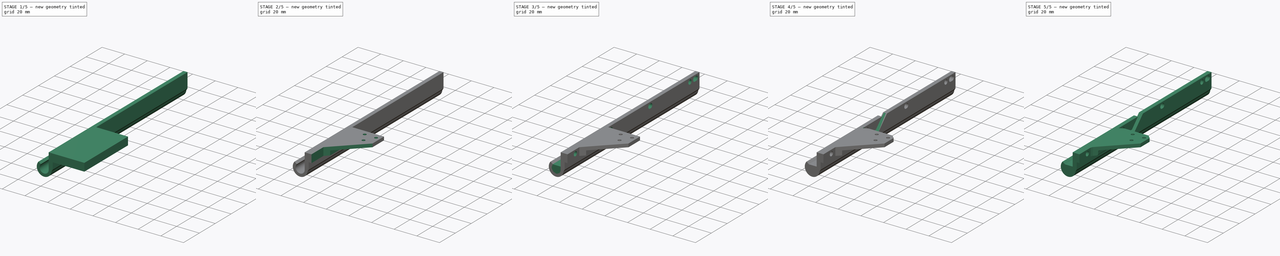
[diagram: build sequence overview — one tinted view per stage of 5, left to right]
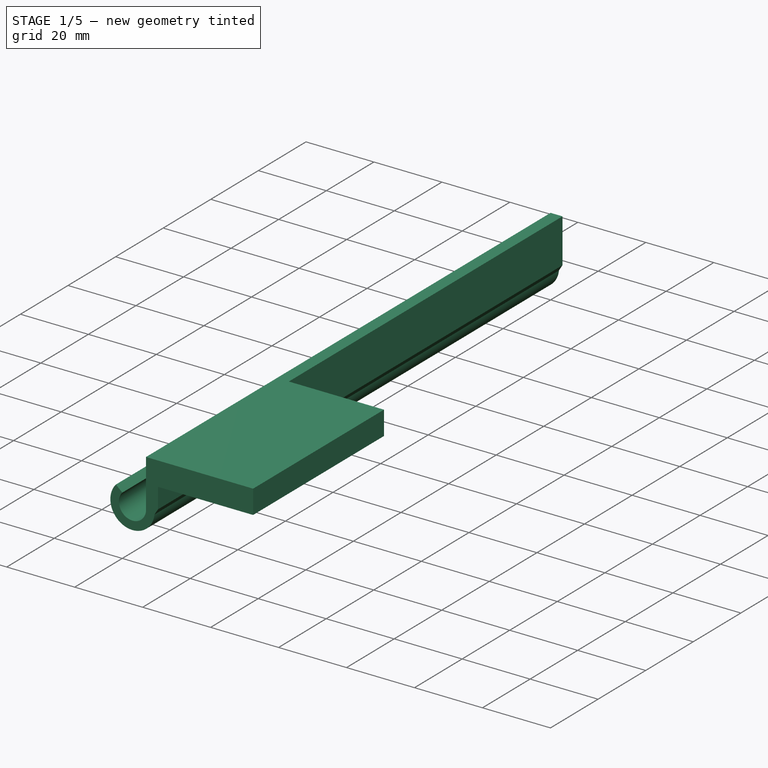
[diagram: stage 1 of 5 — iso view after this stage's code; geometry added in this stage tinted green]
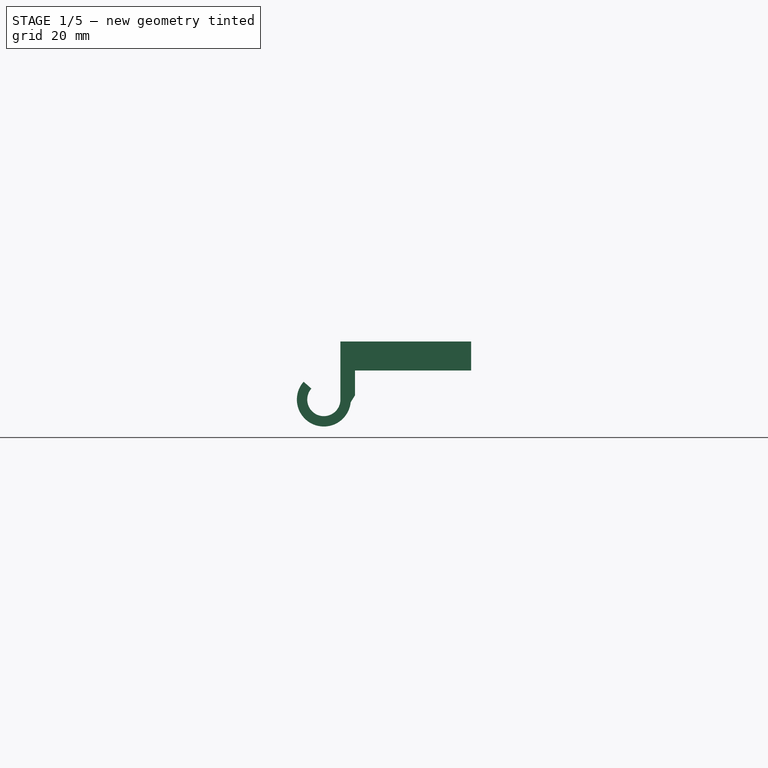
[diagram: stage 1 of 5 — front view after this stage's code; geometry added in this stage tinted green]
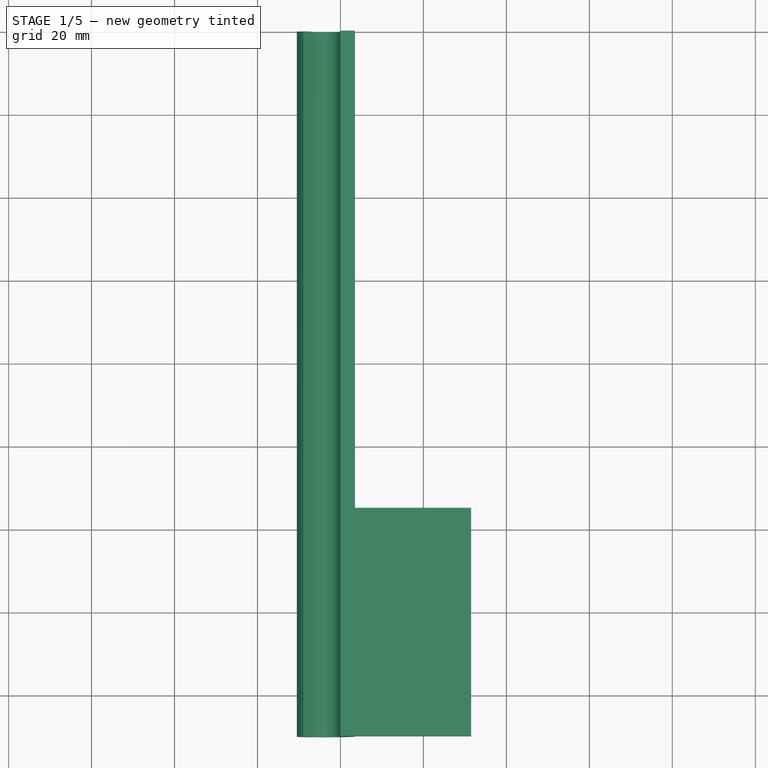
[diagram: stage 1 of 5 — top view after this stage's code; geometry added in this stage tinted green]
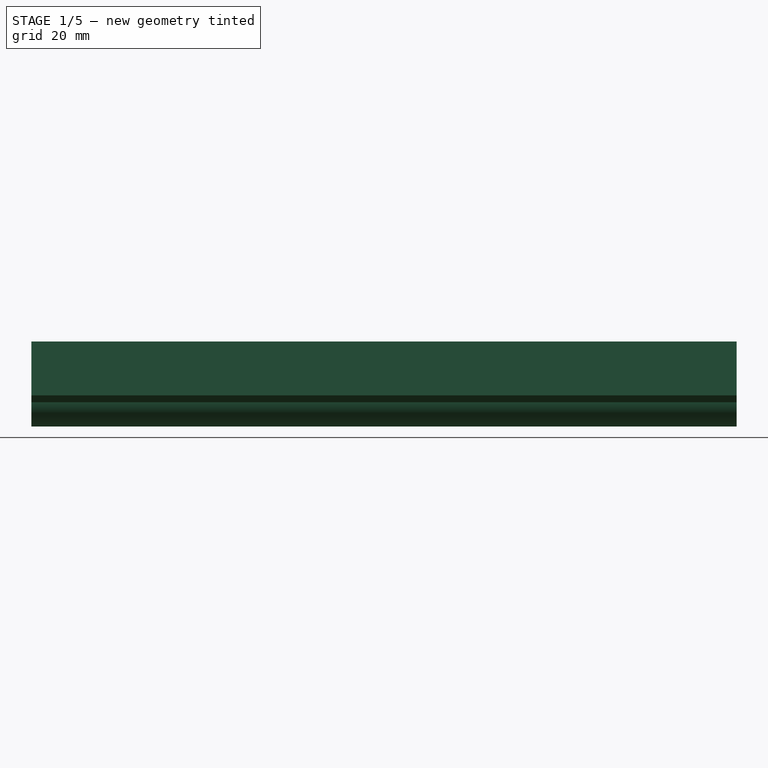
[diagram: stage 1 of 5 — right view after this stage's code; geometry added in this stage tinted green]
FCSTD DOCUMENT  (FreeCAD 0.19R)
Label: BedChainWire2
License: All rights reserved
LicenseURL: http://en.wikipedia.org/wiki/All_rights_reserved
objects: Sketcher::SketchObject×12, PartDesign::Pocket×7, PartDesign::Pad×5, PartDesign::Chamfer×2, PartDesign::Fillet×2, PartDesign::Body×1
note: 45 computed .brp shape members not serialized (recipe doc carries the construction recipe); baked Part::Feature solids carry a one-line shape summary decoded from their .brp

FEATURE [Sketcher::SketchObject] Sketch
  FullyConstrained = true
  MapMode = 5
  Placement = pos=(0,0,0) rot=(1,0,0;1.5708rad)
  Support = -> [XZ_Plane]
  sketch-geometry (6):
    g0: LineSegment StartX=0 StartY=0 StartZ=0 EndX=2.5 EndY=0 EndZ=0
    g1: LineSegment StartX=2.5 StartY=0 StartZ=0 EndX=2.5 EndY=-14 EndZ=0
    g2: ArcOfCircle CenterX=-4 CenterY=-14 CenterZ=0 NormalX=0 NormalY=0 NormalZ=1 AngleXU=0 Radius=4 StartAngle=2.41886 EndAngle=6.28319
    g3: ArcOfCircle CenterX=-4 CenterY=-14 CenterZ=0 NormalX=0 NormalY=0 NormalZ=1 AngleXU=0 Radius=6.5 StartAngle=2.41886 EndAngle=6.28319
    g4: LineSegment StartX=0 StartY=0 StartZ=0 EndX=0 EndY=-14 EndZ=0
    g5: LineSegment StartX=-8.875 StartY=-9.70065 StartZ=0 EndX=-7 EndY=-11.3542 EndZ=0
  constraints (16):
    c: Coincident(g-1,g0)
    c: Horizontal(g0)
    c: Coincident(g0,g1)
    c: Vertical(g1)
    c: Coincident(g3,g2)
    c: Tangent(g3,g1) = 1.5708
    c: Coincident(g4,g0)
    c: Vertical(g4)
    c: Tangent(g4,g2) = 1.5708
    c: Coincident(g5,g3)
    c: Coincident(g5,g2)
    c: Diameter(g2) = 8
    c: Perpendicular(g2,g5)
    c: Distance(g5) = 2.5
    c: Distance(g4) = 14
    c: DistanceX(g2) = -7
FEATURE [PartDesign::Pad] Pad
  Direction = (1,1,1)
  Length = 170
  Length2 = 100
  Placement = pos=(0,0,0) rot=(1,0,0;1.5708rad)
  Profile = -> Sketch
  Type = 0
FEATURE [Sketcher::SketchObject] Sketch001  label="mountHoles"
  FullyConstrained = false
  MapMode = 5
  Placement = pos=(2.5,0,0) rot=(0.707107,0,0.707107;3.14159rad)
  Support = -> [Pad]
  sketch-geometry (14):
    g0: Circle CenterX=-3.35 CenterY=12 CenterZ=0 NormalX=0 NormalY=0 NormalZ=1 AngleXU=0 Radius=2
    g1: Circle CenterX=-3.35 CenterY=160 CenterZ=0 NormalX=0 NormalY=0 NormalZ=1 AngleXU=0 Radius=2
    g2: ArcOfCircle CenterX=-3.35 CenterY=6 CenterZ=0 NormalX=0 NormalY=0 NormalZ=1 AngleXU=0 Radius=2 StartAngle=5e-16 EndAngle=3.14159
    g3: ArcOfCircle CenterX=-3.35 CenterY=4 CenterZ=0 NormalX=0 NormalY=0 NormalZ=1 AngleXU=0 Radius=2 StartAngle=3.14159 EndAngle=6.28319
    g4: LineSegment StartX=-5.35 StartY=6 StartZ=0 EndX=-5.35 EndY=4 EndZ=0
    g5: LineSegment StartX=-1.35 StartY=6 StartZ=0 EndX=-1.35 EndY=4 EndZ=0
    g6: ArcOfCircle CenterX=-3.35 CenterY=112.5 CenterZ=0 NormalX=0 NormalY=0 NormalZ=1 AngleXU=0 Radius=2 StartAngle=1.0821e-12 EndAngle=3.14159
    g7: ArcOfCircle CenterX=-3.35 CenterY=111.5 CenterZ=0 NormalX=0 NormalY=0 NormalZ=1 AngleXU=0 Radius=2 StartAngle=3.14159 EndAngle=6.28319
    g8: LineSegment StartX=-5.35 StartY=112.5 StartZ=0 EndX=-5.35 EndY=111.5 EndZ=0
    g9: LineSegment StartX=-1.35 StartY=112.5 StartZ=0 EndX=-1.35 EndY=111.5 EndZ=0
    g10: ArcOfCircle CenterX=-3.35 CenterY=62.5 CenterZ=0 NormalX=0 NormalY=0 NormalZ=1 AngleXU=0 Radius=2 StartAngle=9e-16 EndAngle=3.14159
    g11: ArcOfCircle CenterX=-3.35 CenterY=61.5 CenterZ=0 NormalX=0 NormalY=0 NormalZ=1 AngleXU=0 Radius=2 StartAngle=3.14159 EndAngle=6.28319
    g12: LineSegment StartX=-5.35 StartY=62.5 StartZ=0 EndX=-5.35 EndY=61.5 EndZ=0
    g13: LineSegment StartX=-1.35 StartY=62.5 StartZ=0 EndX=-1.35 EndY=61.5 EndZ=0
  constraints (35):
    c: DistanceY(g0) = 12
    c: DistanceX(g0) = -3.35
    c: DistanceX(g1) = -3.35
    c: Diameter(g1) = 4
    c: Equal(g1,g0)
    c: Tangent(g2,g5) = 1.5708
    c: Tangent(g2,g4) = -1.5708
    c: Tangent(g4,g3) = -1.5708
    c: Tangent(g5,g3) = 1.5708
    c: Vertical(g4)
    c: Equal(g2,g3)
    c: Distance(g2,g2) = 4
    c: Distance(g2,g3) = 2
    c: DistanceY(g2) = 6
    c: DistanceX(g2) = -3.35
    c: Tangent(g6,g9) = 1.5708
    c: Tangent(g6,g8) = -1.5708
    c: Tangent(g8,g7) = -1.5708
    c: Tangent(g9,g7) = 1.5708
    c: Vertical(g8)
    c: Equal(g6,g7)
    c: Distance(g6,g6) = 4
    c: Distance(g7,g6) = 1
    c: DistanceX(g6) = -3.35
    c: Tangent(g10,g13) = 1.5708
    c: Tangent(g10,g12) = -1.5708
    c: Tangent(g12,g11) = -1.5708
    c: Tangent(g13,g11) = 1.5708
    c: Vertical(g12)
    c: Equal(g10,g11)
    c: Distance(g10,g11) = 1
    c: Distance(g10,g10) = 4
    c: Distance(g0,g10) = 50.5
    c: DistanceX(g10) = -3.35
    c: Distance(g6,g10) = 50
FEATURE [Sketcher::SketchObject] Sketch003  label="chainpad"
  FullyConstrained = true
  MapMode = 5
  Placement = pos=(2.5,0,0) rot=(0.707107,0,0.707107;3.14159rad)
  sketch-geometry (4):
    g0: LineSegment StartX=-7 StartY=170 StartZ=0 EndX=0 EndY=170 EndZ=0
    g1: LineSegment StartX=0 StartY=170 StartZ=0 EndX=0 EndY=115 EndZ=0
    g2: LineSegment StartX=0 StartY=115 StartZ=0 EndX=-7 EndY=115 EndZ=0
    g3: LineSegment StartX=-7 StartY=115 StartZ=0 EndX=-7 EndY=170 EndZ=0
  constraints (12):
    c: Coincident(g0,g1)
    c: Coincident(g1,g2)
    c: Coincident(g2,g3)
    c: Coincident(g3,g0)
    c: Horizontal(g0)
    c: Horizontal(g2)
    c: Vertical(g1)
    c: Vertical(g3)
    c: Distance(g0) = 7
    c: PointOnObject(g0,g-2)
    c: DistanceY(g0) = 170
    c: Distance(g3) = 55
FEATURE [Sketcher::SketchObject] Sketch004  label="wireExit"
  FullyConstrained = false
  MapMode = 5
  Placement = pos=(2.5,0,0) rot=(0.707107,0,0.707107;3.14159rad)
  sketch-geometry (7):
    g0: LineSegment StartX=-9.5 StartY=109.884 StartZ=0 EndX=-7.5 EndY=107.884 EndZ=0
    g1: LineSegment StartX=-7.5 StartY=107.884 StartZ=0 EndX=-7.5 EndY=100.23 EndZ=0
    g2: LineSegment StartX=-11.5 StartY=97.8841 StartZ=0 EndX=-11.5 EndY=107.884 EndZ=0
    g3: LineSegment StartX=-11.5 StartY=107.884 StartZ=0 EndX=-9.5 EndY=109.884 EndZ=0
    g4: LineSegment StartX=-7.5 StartY=100.23 StartZ=0 EndX=1.8973 EndY=90.8331 EndZ=0
    g5: LineSegment StartX=1.8973 StartY=90.8331 StartZ=0 EndX=4.79463 EndY=81.5895 EndZ=0
    g6: LineSegment StartX=4.79463 StartY=81.5895 StartZ=0 EndX=-11.5 EndY=97.8841 EndZ=0
  constraints (17):
    c: Coincident(g0,g1)
    c: Vertical(g1)
    c: Vertical(g2)
    c: Coincident(g2,g3)
    c: Coincident(g3,g0)
    c: Equal(g3,g0)
    c: Angle(g0) = -0.785398
    c: Distance(g0,g2) = 4
    c: Distance(g2) = 10
    c: DistanceX(g1) = -7.5
    c: Coincident(g1,g4)
    c: Coincident(g4,g5)
    c: Coincident(g5,g6)
    c: Coincident(g6,g2)
    c: Parallel(g6,g4)
    c: Angle(g4) = -0.785398
    c: Perpendicular(g0,g3)
FEATURE [Sketcher::SketchObject] Sketch005  label="chainattachholes"
  FullyConstrained = true
  MapMode = 5
  Placement = pos=(-1.6e-15,1.6e-15,-7) rot=(1,0,0;3.14159rad)
  sketch-geometry (6):
    g0: Circle CenterX=28 CenterY=120 CenterZ=0 NormalX=0 NormalY=0 NormalZ=1 AngleXU=0 Radius=1.4
    g1: Circle CenterX=18 CenterY=120 CenterZ=0 NormalX=0 NormalY=0 NormalZ=1 AngleXU=0 Radius=1.4
    g2: Circle CenterX=23 CenterY=128.66 CenterZ=0 NormalX=0 NormalY=0 NormalZ=1 AngleXU=0 Radius=1.4
    g3: LineSegment StartX=18 StartY=120 StartZ=0 EndX=28 EndY=120 EndZ=0
    g4: LineSegment StartX=28 StartY=120 StartZ=0 EndX=23 EndY=128.66 EndZ=0
    g5: LineSegment StartX=23 StartY=128.66 StartZ=0 EndX=18 EndY=120 EndZ=0
  constraints (15):
    c: Coincident(g3,g1)
    c: Coincident(g3,g0)
    c: Coincident(g3,g4)
    c: Coincident(g4,g2)
    c: Coincident(g4,g5)
    c: Coincident(g5,g3)
    c: Equal(g4,g3)
    c: Equal(g3,g5)
    c: Diameter(g0) = 2.8
    c: Equal(g0,g2)
    c: Equal(g0,g1)
    c: Distance(g3) = 10
    c: Horizontal(g3)
    c: DistanceX(g0) = 28
    c: DistanceY(g0) = 120
FEATURE [Sketcher::SketchObject] Sketch006  label="cableclearance"
  FullyConstrained = true
  MapMode = 5
  Placement = pos=(0,0,0) rot=(-1,0,0;1.5708rad)
  sketch-geometry (2):
    g0: ArcOfCircle CenterX=-3.5 CenterY=10 CenterZ=0 NormalX=0 NormalY=0 NormalZ=1 AngleXU=0 Radius=5 StartAngle=4.71239 EndAngle=7.85398
    g1: LineSegment StartX=-3.5 StartY=15 StartZ=0 EndX=-3.5 EndY=5 EndZ=0
  constraints (7):
    c: Diameter(g0) = 10
    c: DistanceY(g0) = 10
    c: DistanceX(g0) = -3.5
    c: Coincident(g1,g0)
    c: Coincident(g1,g0)
    c: Vertical(g1)
    c: PointOnObject(g0,g1)
FEATURE [Sketcher::SketchObject] Sketch008  label="frontreleif"
  FullyConstrained = false
  MapMode = 5
  Placement = pos=(0,0,1e-15) rot=(0,0,1;3.14159rad)
  sketch-geometry (4):
    g0: LineSegment StartX=-6 StartY=171.39 StartZ=0 EndX=-6 EndY=155 EndZ=0
    g1: LineSegment StartX=-6 StartY=155 StartZ=0 EndX=-43.5873 EndY=117.413 EndZ=0
    g2: LineSegment StartX=-43.5873 StartY=117.413 StartZ=0 EndX=-43.5873 EndY=179.575 EndZ=0
    g3: LineSegment StartX=-43.5873 StartY=179.575 StartZ=0 EndX=-6 EndY=171.39 EndZ=0
  constraints (9):
    c: Vertical(g0)
    c: Coincident(g0,g1)
    c: Coincident(g1,g2)
    c: Vertical(g2)
    c: Coincident(g2,g3)
    c: Coincident(g3,g0)
    c: DistanceX(g0) = -6
    c: DistanceY(g0) = 155
    c: Angle(g1) = -2.35619
FEATURE [Sketcher::SketchObject] Sketch009  label="endcap"
  FullyConstrained = false
  MapMode = 5
  Placement = pos=(0,0,0) rot=(-1,0,0;1.5708rad)
  sketch-geometry (7):
    g0: LineSegment StartX=-8.98889 StartY=11.3212 StartZ=0 EndX=0 EndY=11.3212 EndZ=0
    g1: LineSegment StartX=1.76076 StartY=16.1529 StartZ=0 EndX=-3.18457 EndY=19.1762 EndZ=0
    g2: LineSegment StartX=-3.18457 StartY=19.1762 StartZ=0 EndX=-9.01349 EndY=16.4741 EndZ=0
    g3: LineSegment StartX=-9.01349 StartY=16.4741 StartZ=0 EndX=-8.98889 EndY=11.3212 EndZ=0
    g4: LineSegment StartX=0 StartY=11.3212 StartZ=0 EndX=0 EndY=5.37564 EndZ=0
    g5: LineSegment StartX=0 StartY=5.37564 StartZ=0 EndX=1.76076 EndY=5.37564 EndZ=0
    g6: LineSegment StartX=1.76076 StartY=5.37564 StartZ=0 EndX=1.76076 EndY=16.1529 EndZ=0
  constraints (12):
    c: Horizontal(g0)
    c: Coincident(g1,g2)
    c: Coincident(g2,g3)
    c: Coincident(g3,g0)
    c: PointOnObject(g0,g-2)
    c: Coincident(g0,g4)
    c: PointOnObject(g4,g-2)
    c: Coincident(g4,g5)
    c: Horizontal(g5)
    c: Coincident(g5,g6)
    c: Coincident(g6,g1)
    c: Vertical(g6)
FEATURE [Sketcher::SketchObject] Sketch010  label="frontcap"
  FullyConstrained = false
  MapMode = 5
  Placement = pos=(0,-170,2.26e-13) rot=(1,0,0;1.5708rad)
  sketch-geometry (8):
    g0: LineSegment StartX=1.60772 StartY=-11.3921 StartZ=0 EndX=-8.31304 EndY=-11.3921 EndZ=0
    g1: LineSegment StartX=-8.31304 StartY=-11.3921 StartZ=0 EndX=-9.51489 EndY=-14.3198 EndZ=0
    g2: LineSegment StartX=-9.51489 StartY=-14.3198 StartZ=0 EndX=-8.85866 EndY=-17.0991 EndZ=0
    g3: LineSegment StartX=-8.85866 StartY=-17.0991 StartZ=0 EndX=-6.11791 EndY=-19.2222 EndZ=0
    g4: LineSegment StartX=-6.11791 StartY=-19.2222 StartZ=0 EndX=-3.18414 EndY=-19.2222 EndZ=0
    g5: LineSegment StartX=-3.18414 StartY=-19.2222 StartZ=0 EndX=0.714678 EndY=-18.1028 EndZ=0
    g6: LineSegment StartX=0.714678 StartY=-18.1028 StartZ=0 EndX=1.60772 EndY=-15.7094 EndZ=0
    g7: LineSegment StartX=1.60772 StartY=-15.7094 StartZ=0 EndX=1.60772 EndY=-11.3921 EndZ=0
  constraints (11):
    c: Horizontal(g0)
    c: Coincident(g0,g1)
    c: Coincident(g1,g2)
    c: Coincident(g2,g3)
    c: Coincident(g3,g4)
    c: Horizontal(g4)
    c: Coincident(g4,g5)
    c: Coincident(g5,g6)
    c: Coincident(g6,g7)
    c: Coincident(g7,g0)
    c: Vertical(g7)
FEATURE [Sketcher::SketchObject] Sketch011
  FullyConstrained = false
  MapMode = 5
  Placement = pos=(34.5,0,-8.8e-15) rot=(0.707107,0,0.707107;3.14159rad)
  sketch-geometry (4):
    g0: LineSegment StartX=-11.3544 StartY=166.317 StartZ=0 EndX=-3 EndY=157.963 EndZ=0
    g1: LineSegment StartX=-3 StartY=157.963 StartZ=0 EndX=-3 EndY=109.627 EndZ=0
    g2: LineSegment StartX=-3 StartY=109.627 StartZ=0 EndX=-19.4346 EndY=110.991 EndZ=0
    g3: LineSegment StartX=-19.4346 StartY=110.991 StartZ=0 EndX=-11.3544 EndY=166.317 EndZ=0
  constraints (7):
    c: Coincident(g0,g1)
    c: Vertical(g1)
    c: Coincident(g1,g2)
    c: Coincident(g2,g3)
    c: Coincident(g3,g0)
    c: DistanceX(g0) = -3
    c: Angle(g0) = -0.785398
FEATURE [Sketcher::SketchObject] Sketch012
  FullyConstrained = false
  MapMode = 5
  Placement = pos=(0,-170,-3.77e-14) rot=(1,0,0;1.5708rad)
  sketch-geometry (4):
    g0: LineSegment StartX=3.5 StartY=0 StartZ=0 EndX=3.5 EndY=-13 EndZ=0
    g1: LineSegment StartX=3.5 StartY=-13 StartZ=0 EndX=0.771706 EndY=-17.3791 EndZ=0
    g2: LineSegment StartX=0.771706 StartY=-17.3791 StartZ=0 EndX=0.771706 EndY=0 EndZ=0
    g3: LineSegment StartX=0.771706 StartY=0 StartZ=0 EndX=3.5 EndY=0 EndZ=0
  constraints (10):
    c: PointOnObject(g0,g-1)
    c: Vertical(g0)
    c: Coincident(g0,g1)
    c: Coincident(g1,g2)
    c: PointOnObject(g2,g-1)
    c: Vertical(g2)
    c: Coincident(g2,g3)
    c: Coincident(g3,g0)
    c: DistanceX(g0) = 3.5
    c: DistanceY(g0) = -13
FEATURE [PartDesign::Pad] Pad001
  BaseFeature = -> Pad
  Direction = (1,1,1)
  Length = 170
  Length2 = 100
  Placement = pos=(0,0,0) rot=(1,0,0;1.5708rad)
  Profile = -> Sketch012
  Reversed = true
  Type = 0
FEATURE [PartDesign::Pad] Pad002
  BaseFeature = -> Pad001
  Direction = (1,1,1)
  Length = 29
  Length2 = 100
  Placement = pos=(0,0,0) rot=(1,0,0;1.5708rad)
  Profile = -> Sketch003
  Type = 0
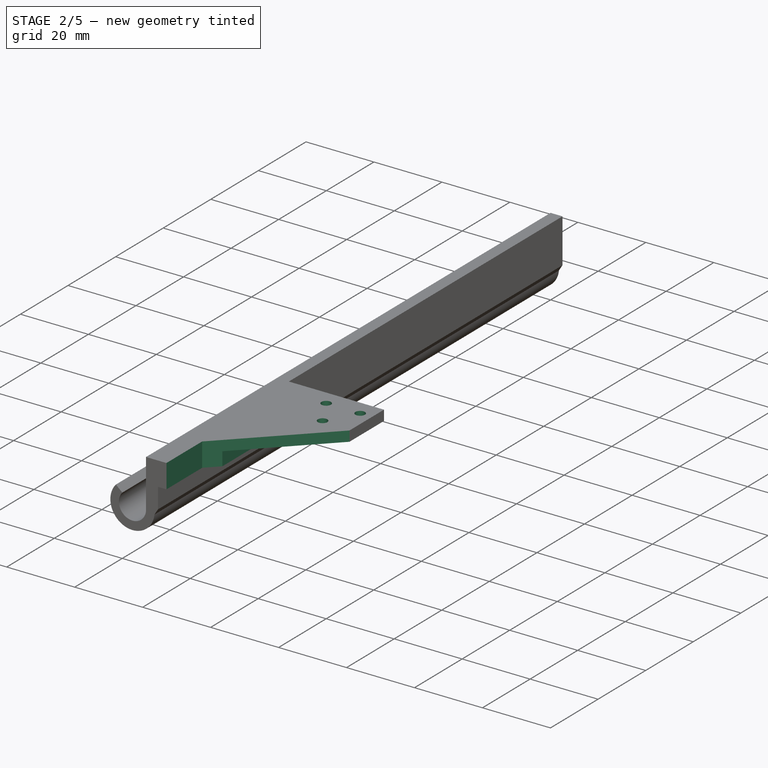
[diagram: stage 2 of 5 — iso view after this stage's code; geometry added in this stage tinted green]
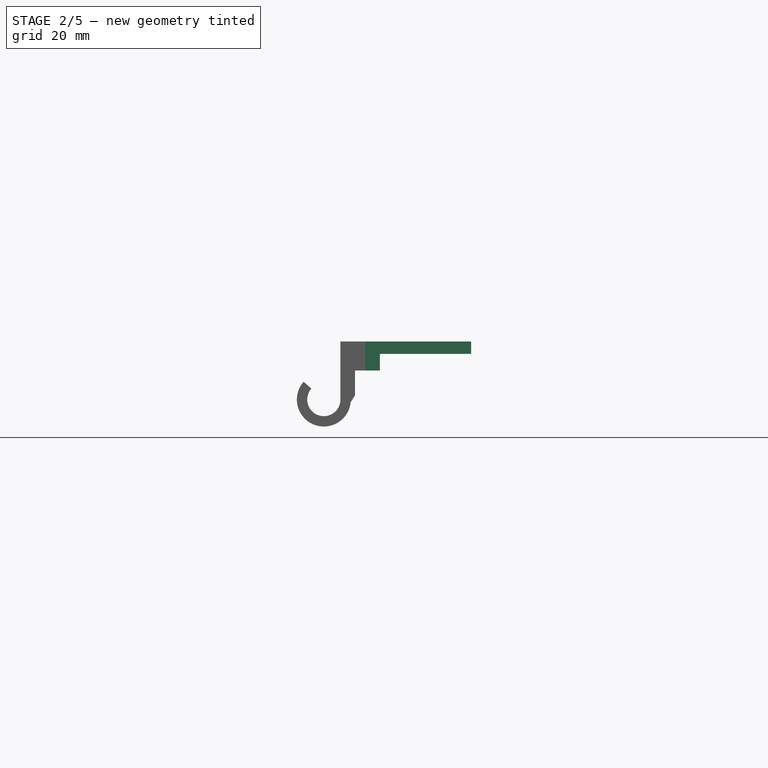
[diagram: stage 2 of 5 — front view after this stage's code; geometry added in this stage tinted green]
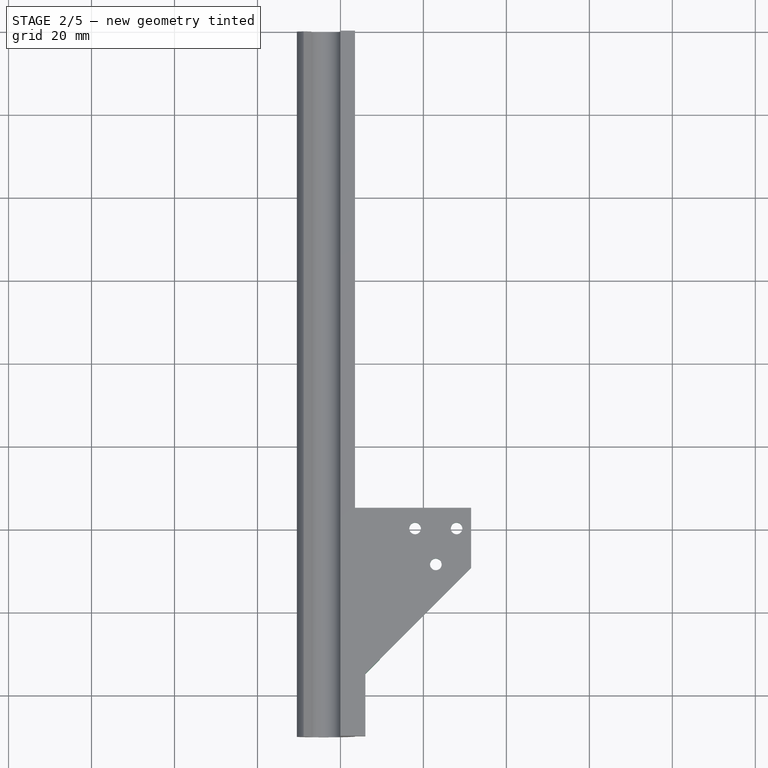
[diagram: stage 2 of 5 — top view after this stage's code; geometry added in this stage tinted green]
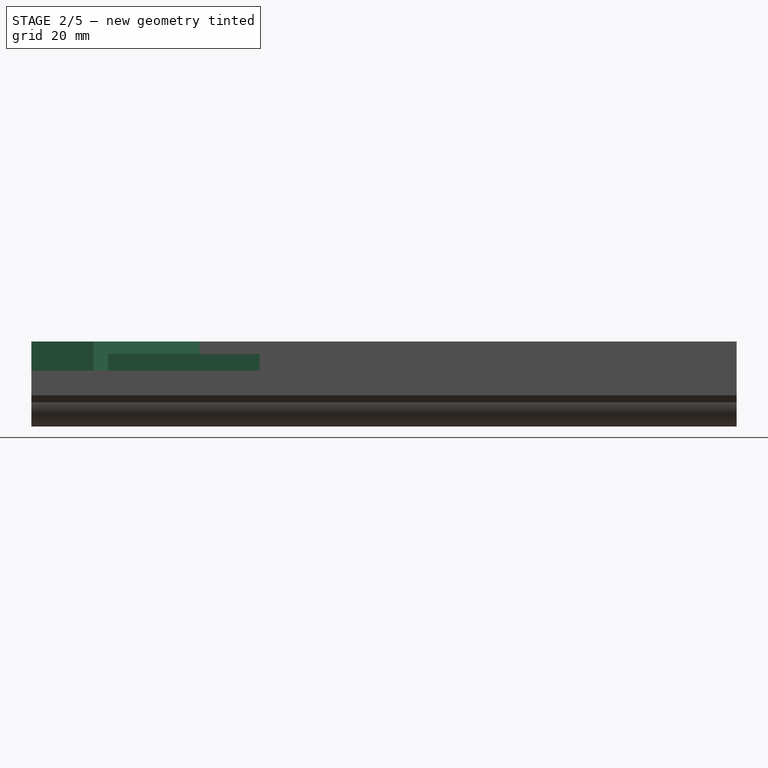
[diagram: stage 2 of 5 — right view after this stage's code; geometry added in this stage tinted green]
FEATURE [PartDesign::Pocket] Pocket
  BaseFeature = -> Pad002
  Length = 9
  Length2 = 100
  Placement = pos=(0,0,0) rot=(1,0,0;1.5708rad)
  Profile = -> Sketch008
  Type = 0
FEATURE [PartDesign::Pocket] Pocket001
  BaseFeature = -> Pocket
  Length = 25
  Length2 = 100
  Placement = pos=(0,0,0) rot=(1,0,0;1.5708rad)
  Profile = -> Sketch011
  Type = 0
FEATURE [PartDesign::Pocket] Pocket002
  BaseFeature = -> Pocket001
  Length = 5
  Length2 = 100
  Placement = pos=(0,0,0) rot=(1,0,0;1.5708rad)
  Profile = -> Sketch005
  Type = 1
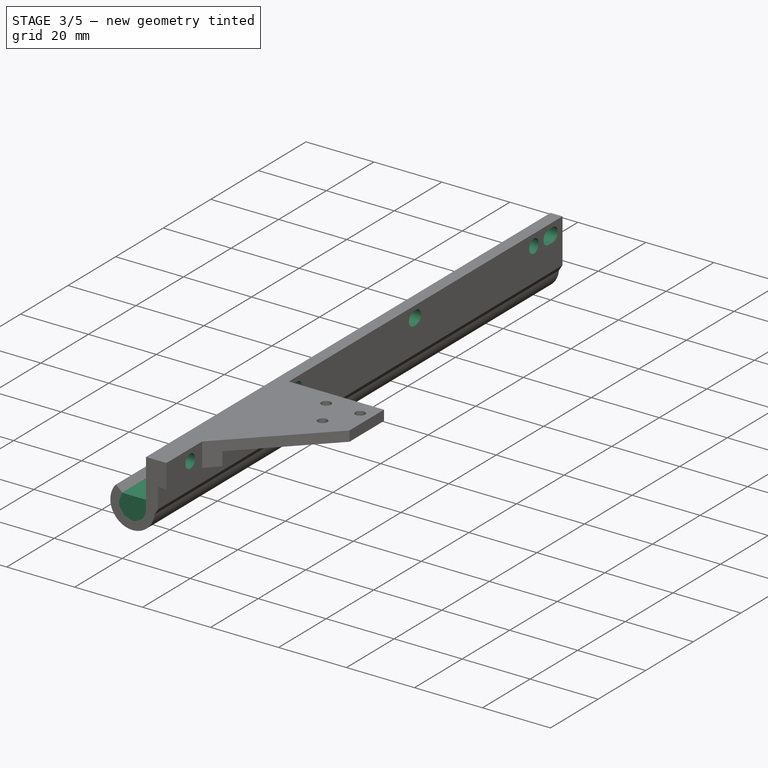
[diagram: stage 3 of 5 — iso view after this stage's code; geometry added in this stage tinted green]
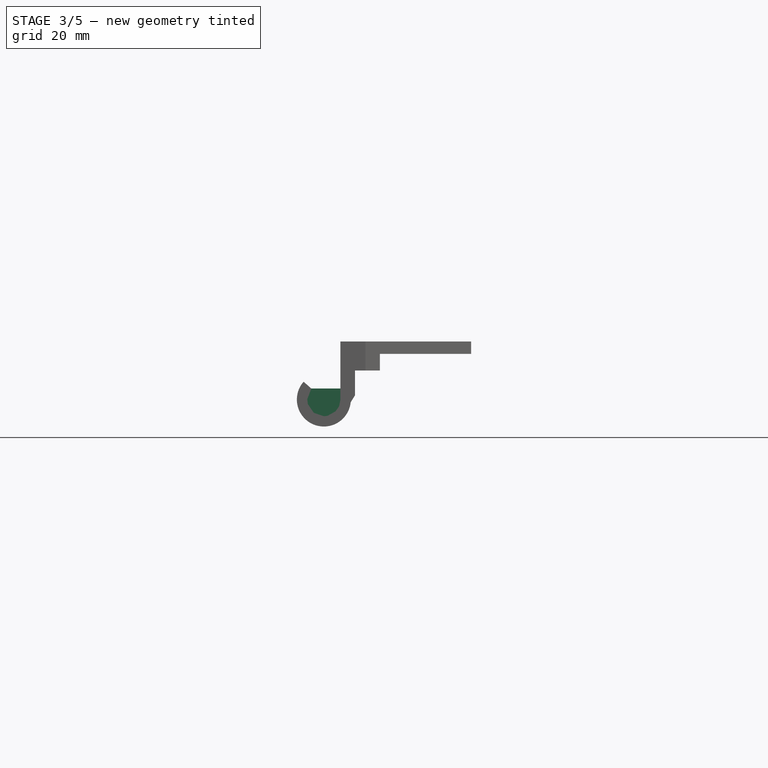
[diagram: stage 3 of 5 — front view after this stage's code; geometry added in this stage tinted green]
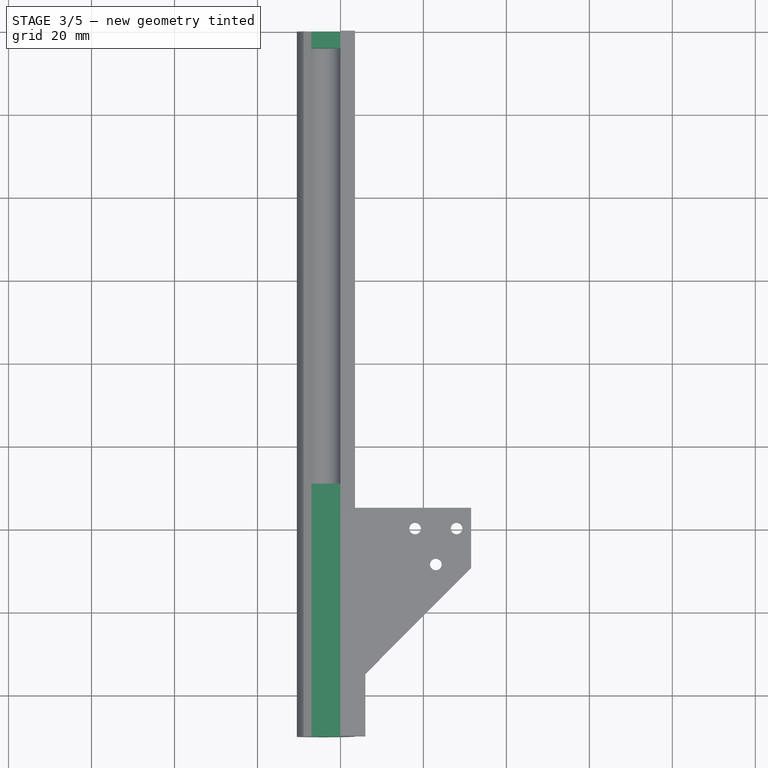
[diagram: stage 3 of 5 — top view after this stage's code; geometry added in this stage tinted green]
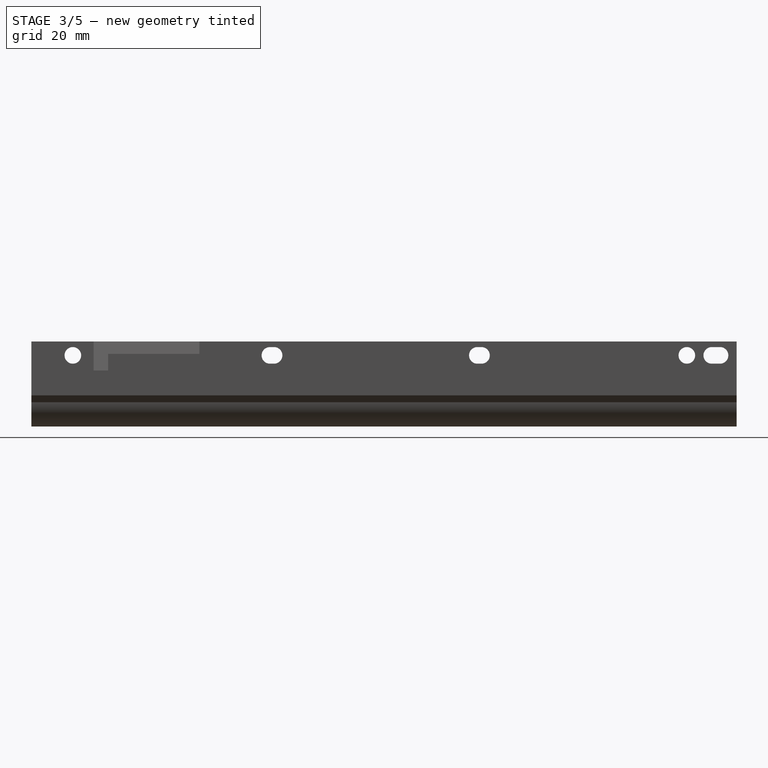
[diagram: stage 3 of 5 — right view after this stage's code; geometry added in this stage tinted green]
FEATURE [PartDesign::Pocket] Pocket003
  BaseFeature = -> Pocket002
  Length = 5
  Length2 = 100
  Placement = pos=(0,0,0) rot=(1,0,0;1.5708rad)
  Profile = -> Sketch001
  Type = 4
FEATURE [PartDesign::Pocket] Pocket004
  BaseFeature = -> Pocket003
  Length = 40
  Length2 = 100
  Placement = pos=(0,0,0) rot=(1,0,0;1.5708rad)
  Profile = -> Sketch006
  Type = 0
FEATURE [PartDesign::Pad] Pad003
  BaseFeature = -> Pocket004
  Direction = (1,1,1)
  Length = 4
  Length2 = 100
  Placement = pos=(0,0,0) rot=(1,0,0;1.5708rad)
  Profile = -> Sketch009
  Reversed = true
  Type = 0
FEATURE [PartDesign::Pad] Pad004
  BaseFeature = -> Pad003
  Direction = (1,1,1)
  Length = 61
  Length2 = 100
  Placement = pos=(0,0,0) rot=(1,0,0;1.5708rad)
  Profile = -> Sketch010
  Reversed = true
  Type = 0
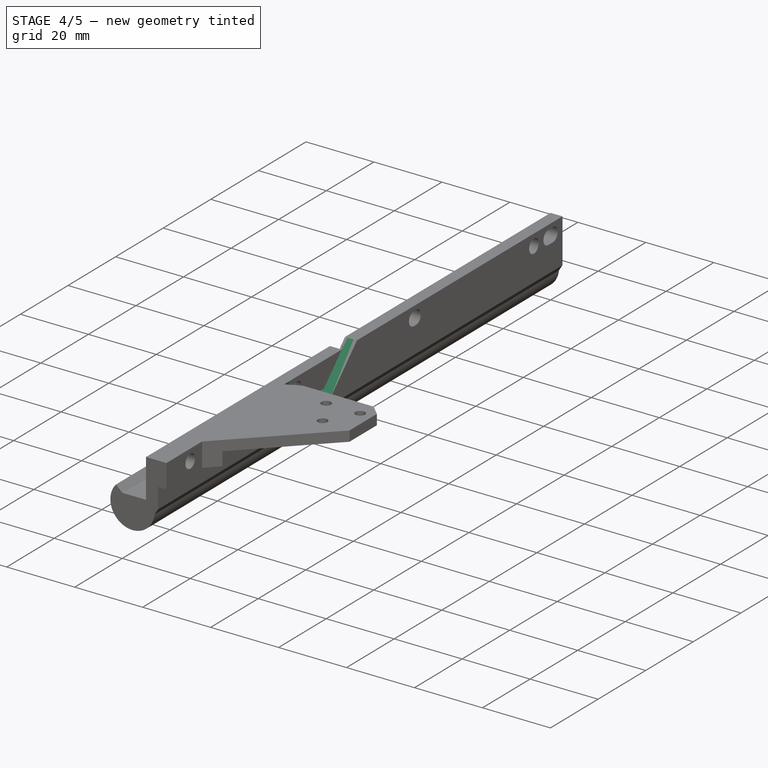
[diagram: stage 4 of 5 — iso view after this stage's code; geometry added in this stage tinted green]
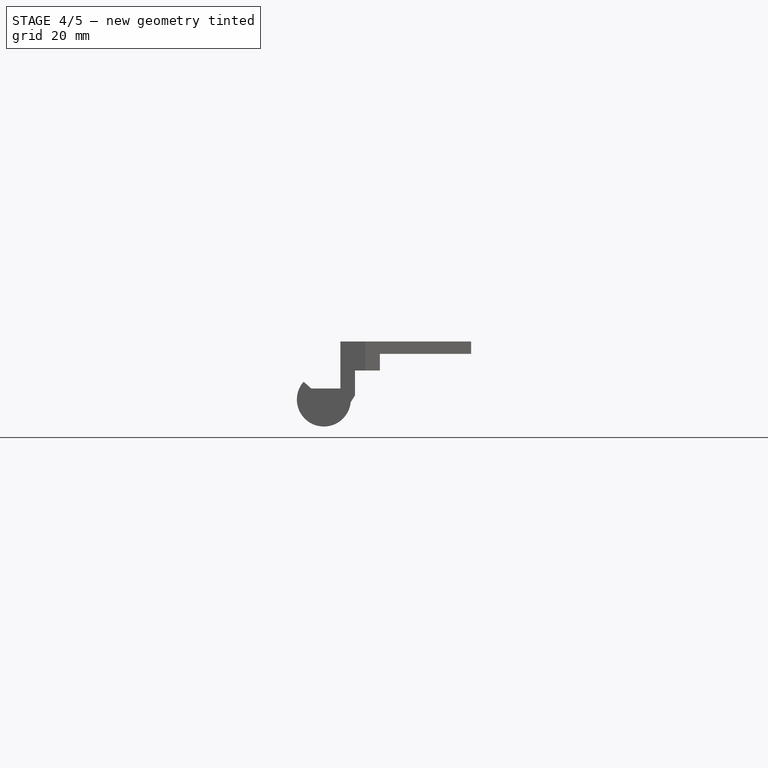
[diagram: stage 4 of 5 — front view after this stage's code; geometry added in this stage tinted green]
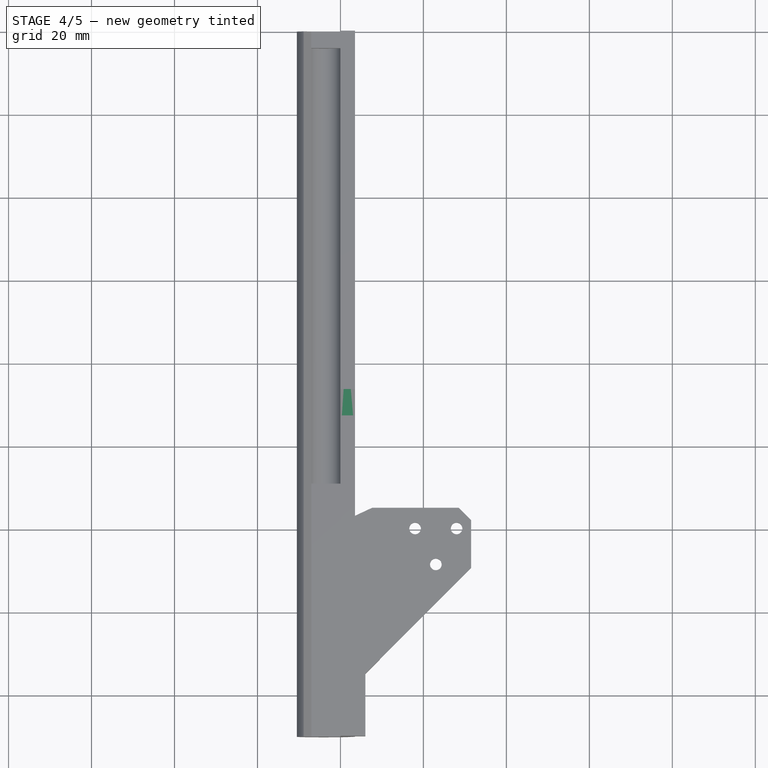
[diagram: stage 4 of 5 — top view after this stage's code; geometry added in this stage tinted green]
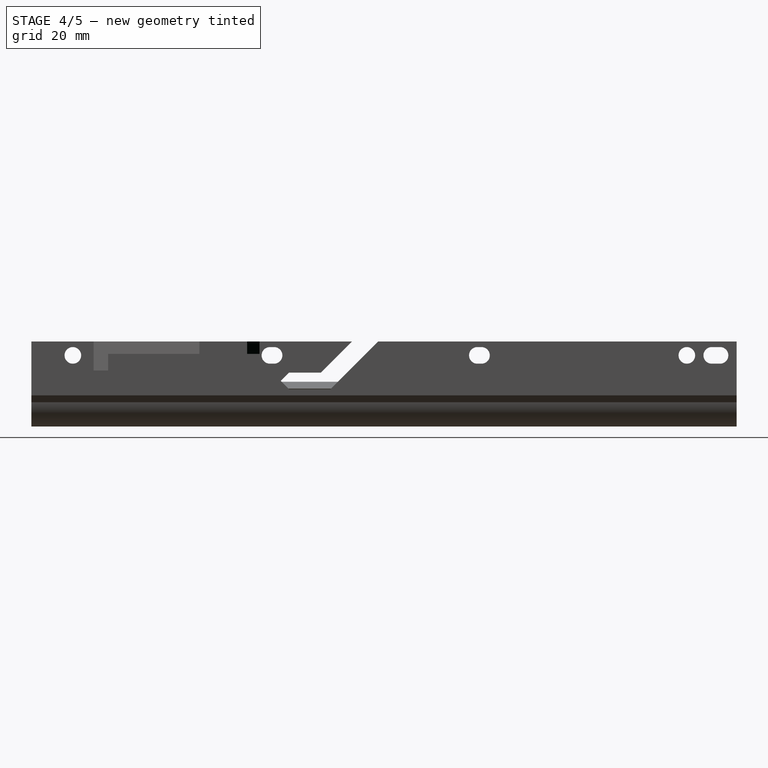
[diagram: stage 4 of 5 — right view after this stage's code; geometry added in this stage tinted green]
FEATURE [PartDesign::Pocket] Pocket005
  BaseFeature = -> Pad004
  Length = 5
  Length2 = 100
  Placement = pos=(0,0,0) rot=(1,0,0;1.5708rad)
  Profile = -> Sketch004
  Type = 4
FEATURE [Sketcher::SketchObject] Sketch013
  FullyConstrained = false
  MapMode = 5
  Placement = pos=(0,0,6e-16) rot=(0,0,1;3.14159rad)
  Support = -> [Pocket005]
  sketch-geometry (3):
    g0: LineSegment StartX=-3.5 StartY=112.049 StartZ=0 EndX=-3.5 EndY=116.944 EndZ=0
    g1: LineSegment StartX=-3.5 StartY=116.944 StartZ=0 EndX=-13.2851 EndY=112.394 EndZ=0
    g2: LineSegment StartX=-13.2851 StartY=112.394 StartZ=0 EndX=-3.5 EndY=112.049 EndZ=0
  constraints (5):
    c: Vertical(g0)
    c: Coincident(g0,g1)
    c: Coincident(g1,g2)
    c: Coincident(g2,g0)
    c: DistanceX(g0) = -3.5
FEATURE [PartDesign::Pocket] Pocket006
  BaseFeature = -> Pocket005
  Length = 9
  Length2 = 100
  Placement = pos=(0,0,0) rot=(1,0,0;1.5708rad)
  Profile = -> Sketch013
  Type = 0
FEATURE [PartDesign::Chamfer] Chamfer
  Angle = 45
  Base = -> Pocket006 [Edge198]
  BaseFeature = -> Pocket006
  ChamferType = 0
  FlipDirection = false
  Placement = pos=(0,0,0) rot=(1,0,0;1.5708rad)
  Size = 3
  Size2 = 1
  SupportTransform = false
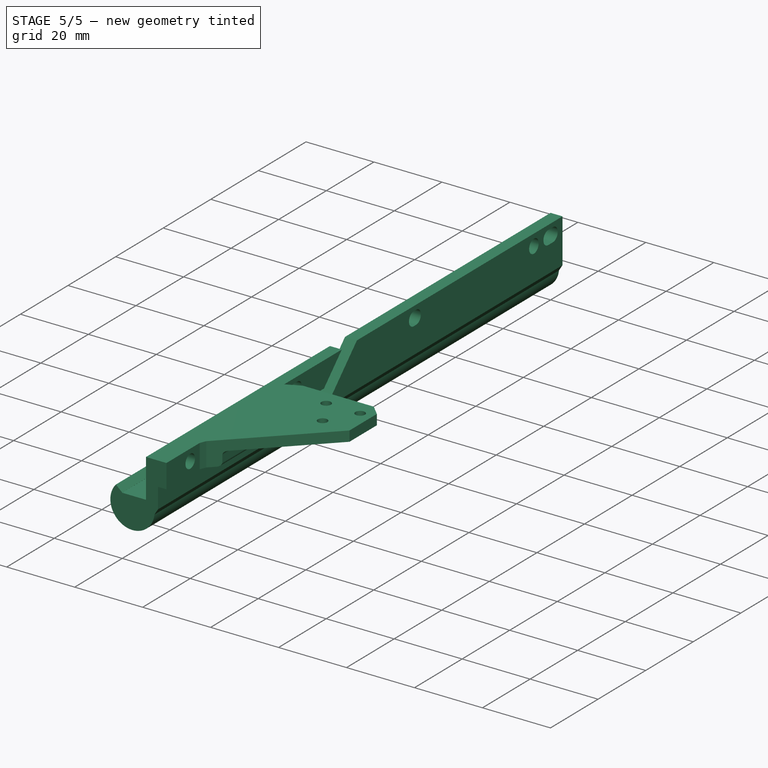
[diagram: stage 5 of 5 — iso view after this stage's code; geometry added in this stage tinted green]
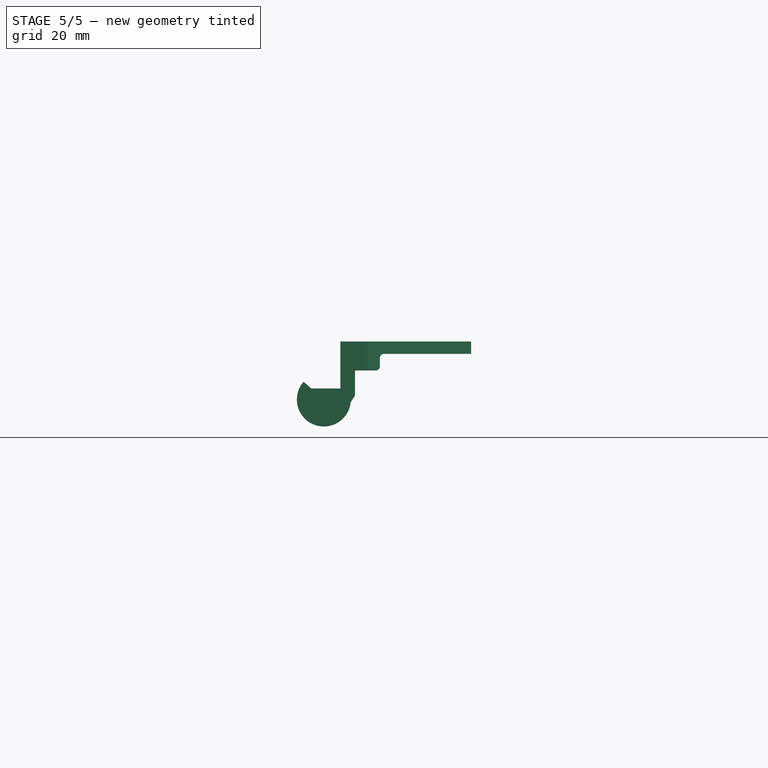
[diagram: stage 5 of 5 — front view after this stage's code; geometry added in this stage tinted green]
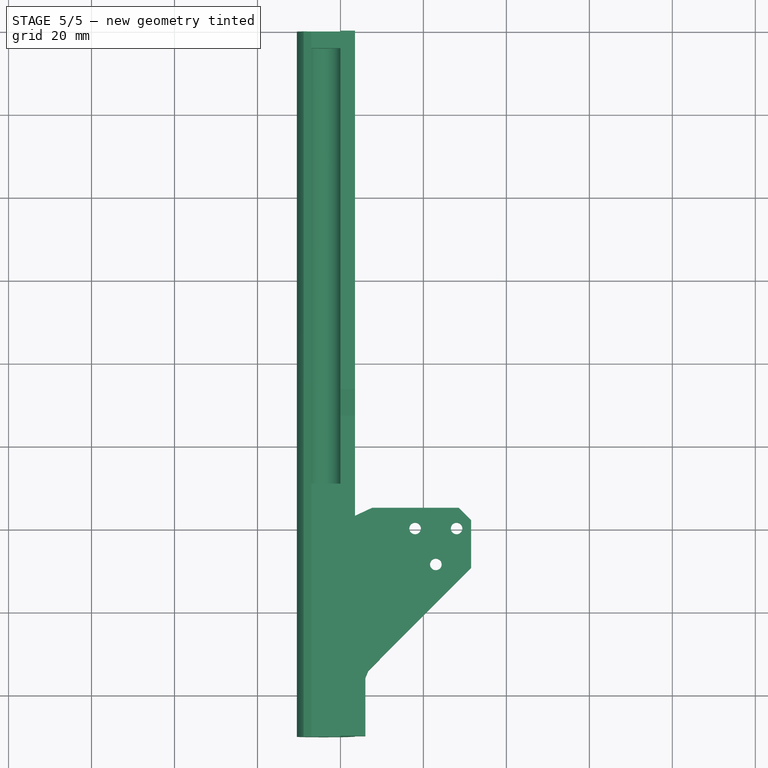
[diagram: stage 5 of 5 — top view after this stage's code; geometry added in this stage tinted green]
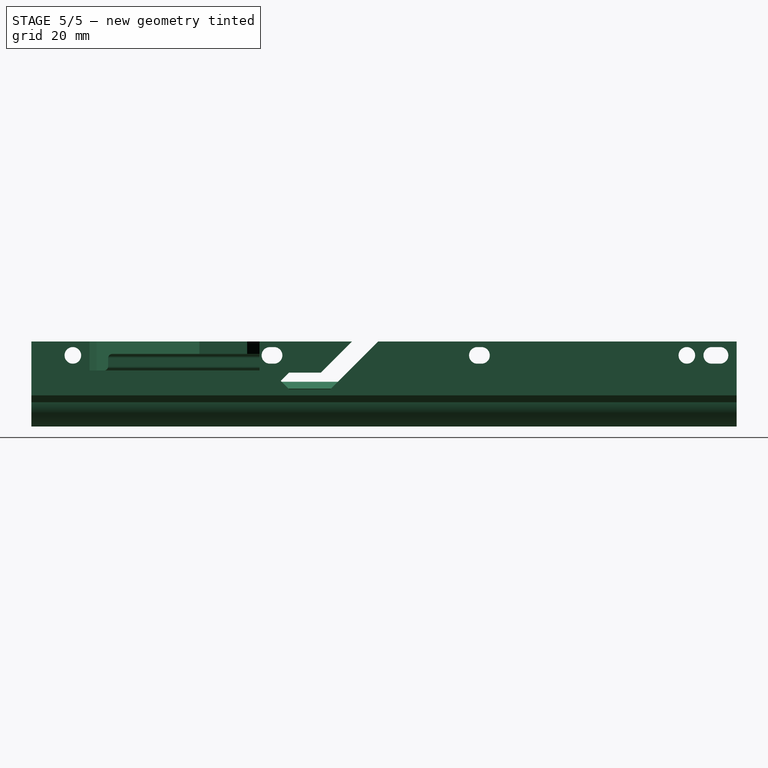
[diagram: stage 5 of 5 — right view after this stage's code; geometry added in this stage tinted green]
FEATURE [PartDesign::Chamfer] Chamfer001
  Angle = 45
  Base = -> Chamfer [Edge34]
  BaseFeature = -> Chamfer
  ChamferType = 0
  FlipDirection = false
  Placement = pos=(0,0,0) rot=(1,0,0;1.5708rad)
  Size = 1
  Size2 = 1
  SupportTransform = false
FEATURE [PartDesign::Fillet] Fillet
  Base = -> Chamfer001 [Edge47]
  BaseFeature = -> Chamfer001
  Placement = pos=(0,0,0) rot=(1,0,0;1.5708rad)
  Radius = 1
  SupportTransform = false
FEATURE [PartDesign::Fillet] Fillet001
  Base = -> Fillet [Edge19]
  BaseFeature = -> Fillet
  Placement = pos=(0,0,0) rot=(1,0,0;1.5708rad)
  Radius = 1
  SupportTransform = false
FEATURE [PartDesign::Body] Body
  Group = -> [Sketch,Pad,Sketch001,Sketch003,Sketch004,Sketch005,Sketch006,Sketch008,Sketch009,Sketch010,Sketch011,Sketch012,Pad001,Pad002,Pocket,Pocket001,Pocket002,Pocket003,Pocket004,Pad003,Pad004,Pocket005,Sketch013,Pocket006,Chamfer,Chamfer001,Fillet,Fillet001]
  Origin = -> Origin
  Tip = -> Fillet001
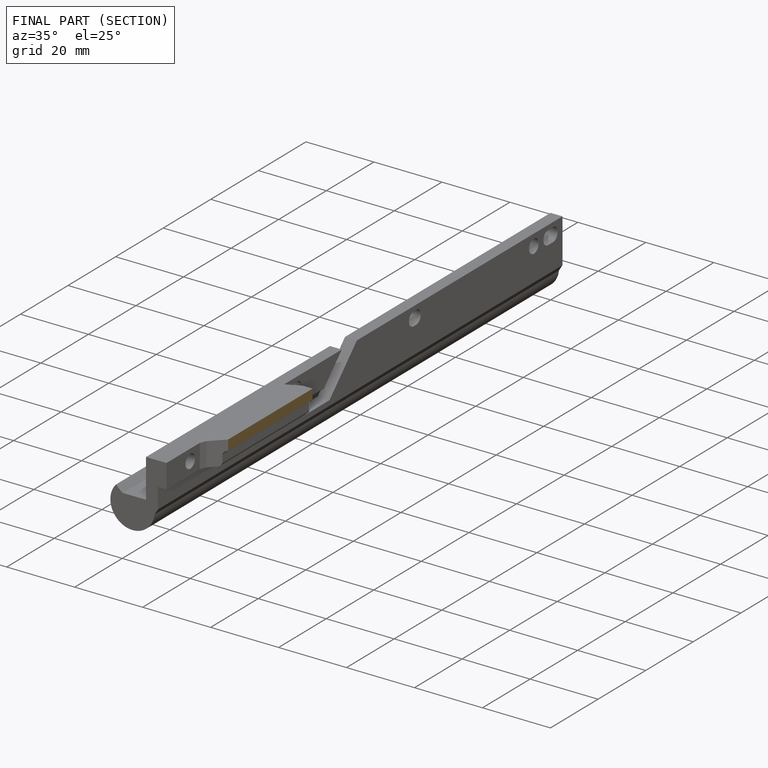
[diagram: finished part — half-section view (interior)]
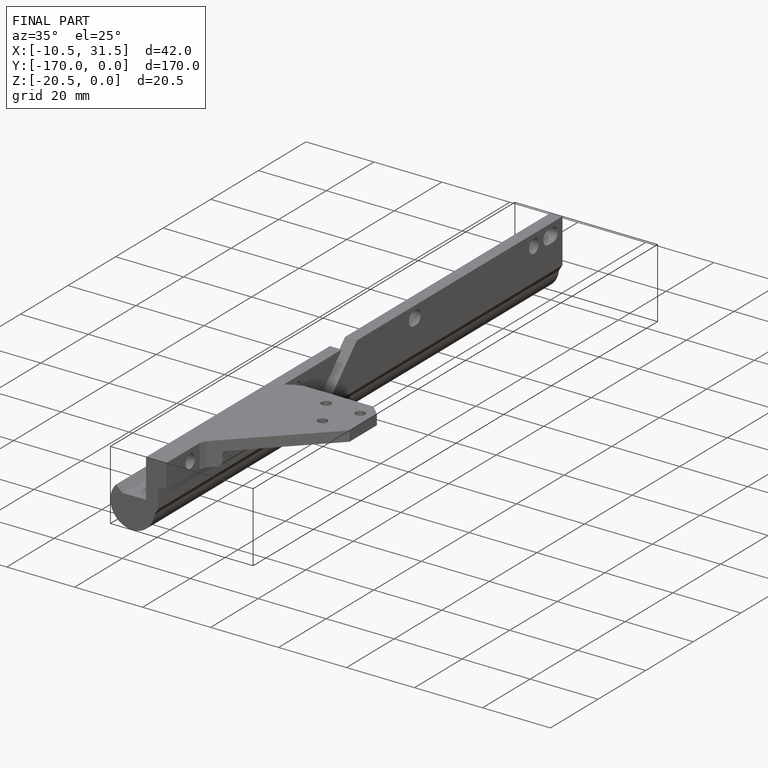
[diagram: finished part — iso view with bounding-box wireframe]
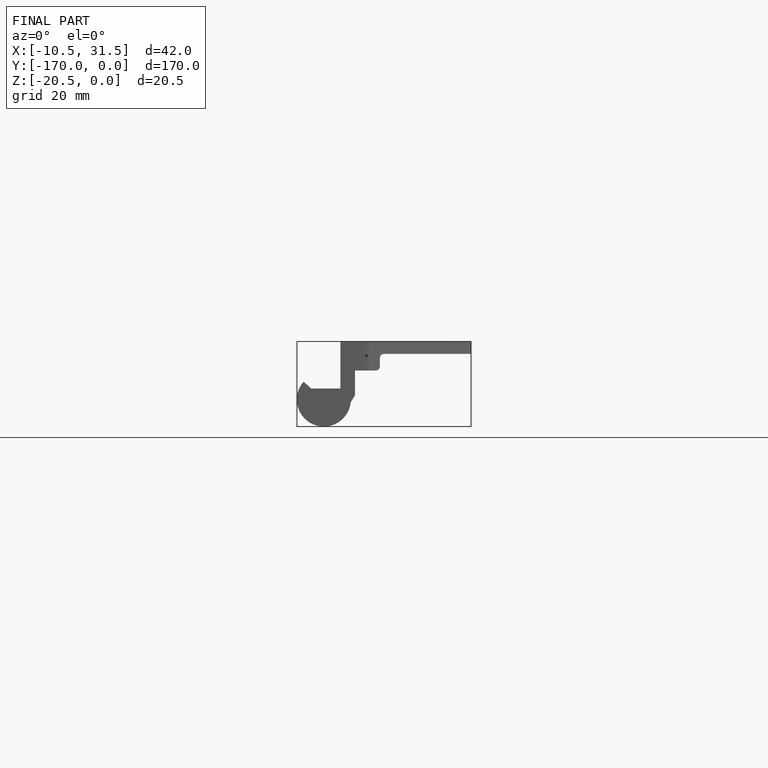
[diagram: finished part — front view with bounding-box wireframe]
